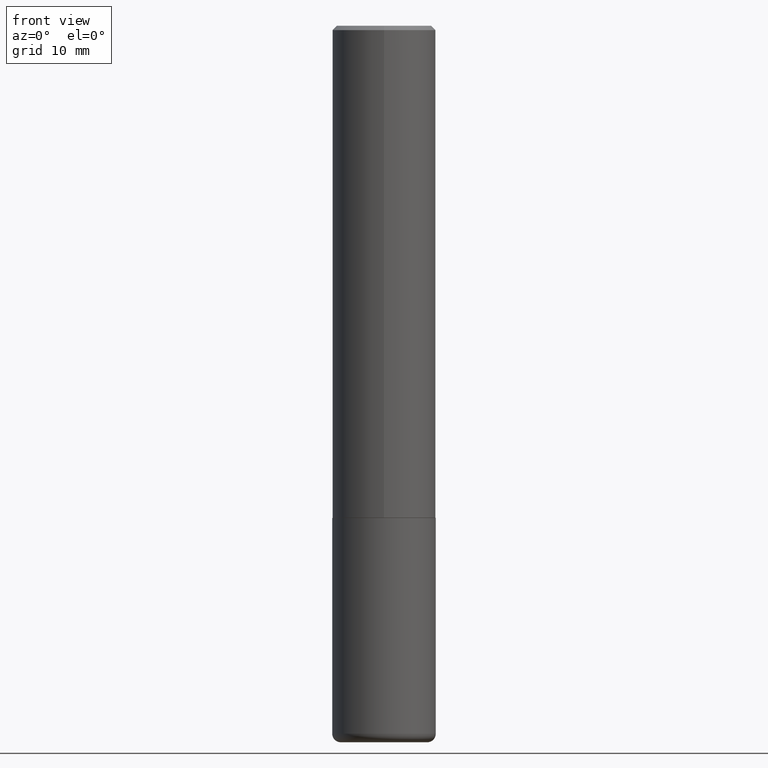
[diagram: clean part render]
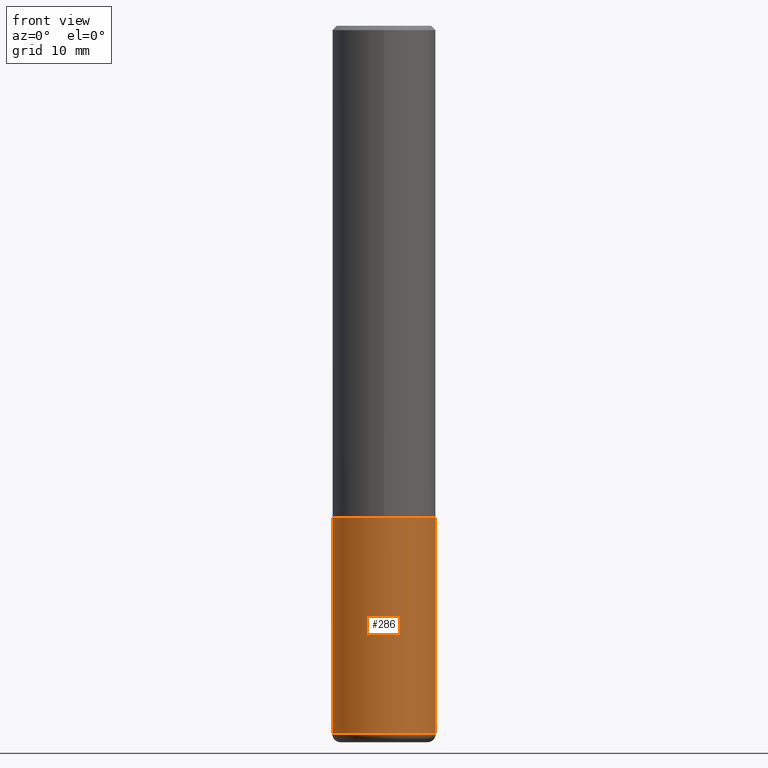
[diagram: same view with one face highlighted and labeled with its STEP entity id]
A machine part, front view. The second image highlights one B-rep face of the part: STEP entity #286.
In plain terms, the highlighted cylindrical surface (partial cylindrical patch) has radius 5.9995 mm, axis along (-0, 0, 1).
Its self-contained STEP definition (entity closure, byte-faithful):
#1 = EDGE_CURVE ( 'NONE', #215, #292, #14, .T. ) ;
#5 = DIRECTION ( 'NONE',  ( -2.445468806185136877E-29, 3.491481338843145188E-15, 1.000000000000000000 ) ) ;
#14 = LINE ( 'NONE', #302, #70 ) ;
#22 = AXIS2_PLACEMENT_3D ( 'NONE', #30, #266, #100 ) ;
#30 = CARTESIAN_POINT ( 'NONE',  ( 0.000000000000000000, 0.000000000000000000, 0.000000000000000000 ) ) ;
#44 = EDGE_CURVE ( 'NONE', #292, #48, #120, .T. ) ;
#48 = VERTEX_POINT ( 'NONE', #275 ) ;
#55 = CARTESIAN_POINT ( 'NONE',  ( -0.2362000000000001321, -9.593247264321970832E-15, -3.228299999999999947 ) ) ;
#64 = CARTESIAN_POINT ( 'NONE',  ( 0.2362000000000001321, -1.292092499065682533E-14, -3.228299999999999947 ) ) ;
#65 = VECTOR ( 'NONE', #262, 39.37007874015748143 ) ;
#70 = VECTOR ( 'NONE', #5, 39.37007874015748143 ) ;
#71 = DIRECTION ( 'NONE',  ( 1.000000000000000000, -6.982962677686265922E-15, 0.000000000000000000 ) ) ;
#74 = DIRECTION ( 'NONE',  ( 1.000000000000000000, -6.982962677686268288E-15, 0.000000000000000000 ) ) ;
#100 = DIRECTION ( 'NONE',  ( 1.000000000000000000, -6.982962677686266711E-15, 4.876176775795936353E-29 ) ) ;
#101 = EDGE_CURVE ( 'NONE', #157, #48, #161, .T. ) ;
#107 = CARTESIAN_POINT ( 'NONE',  ( 5.487876547960065873E-29, -7.835233272497903917E-15, -2.244100000000000428 ) ) ;
#120 = CIRCLE ( 'NONE', #220, 0.2362000000000000210 ) ;
#121 = ORIENTED_EDGE ( 'NONE', *, *, #101, .T. ) ;
#145 = CARTESIAN_POINT ( 'NONE',  ( -0.2362000000000000766, -7.875089297477259967E-15, -2.244100000000000428 ) ) ;
#157 = VERTEX_POINT ( 'NONE', #64 ) ;
#161 = LINE ( 'NONE', #255, #65 ) ;
#162 = EDGE_LOOP ( 'NONE', ( #226, #304, #121, #248 ) ) ;
#186 = AXIS2_PLACEMENT_3D ( 'NONE', #329, #212, #71 ) ;
#212 = DIRECTION ( 'NONE',  ( -2.445468806185136597E-29, 3.491481338843145583E-15, 1.000000000000000000 ) ) ;
#215 = VERTEX_POINT ( 'NONE', #55 ) ;
#220 = AXIS2_PLACEMENT_3D ( 'NONE', #107, #246, #74 ) ;
#226 = ORIENTED_EDGE ( 'NONE', *, *, #1, .F. ) ;
#246 = DIRECTION ( 'NONE',  ( -2.445468806185136597E-29, 3.491481338843145583E-15, 1.000000000000000000 ) ) ;
#248 = ORIENTED_EDGE ( 'NONE', *, *, #44, .F. ) ;
#255 = CARTESIAN_POINT ( 'NONE',  ( 0.2361999999999999933, -1.649375784469496131E-15, 1.151752954443000088E-29 ) ) ;
#262 = DIRECTION ( 'NONE',  ( -2.445468806185136877E-29, 3.491481338843145188E-15, 1.000000000000000000 ) ) ;
#266 = DIRECTION ( 'NONE',  ( -2.445468806185136597E-29, 3.491481338843145583E-15, 1.000000000000000000 ) ) ;
#275 = CARTESIAN_POINT ( 'NONE',  ( 0.2362000000000000210, -9.484609056967400443E-15, -2.244100000000000428 ) ) ;
#286 = ADVANCED_FACE ( 'NONE', ( #384 ), #353, .T. ) ;
#292 = VERTEX_POINT ( 'NONE', #145 ) ;
#302 = CARTESIAN_POINT ( 'NONE',  ( -0.2361999999999999933, 1.678301941865356591E-15, -1.161852468318208757E-29 ) ) ;
#304 = ORIENTED_EDGE ( 'NONE', *, *, #327, .T. ) ;
#327 = EDGE_CURVE ( 'NONE', #215, #157, #349, .T. ) ;
#329 = CARTESIAN_POINT ( 'NONE',  ( 7.894706947007477118E-29, -1.127154920618732880E-14, -3.228299999999999947 ) ) ;
#349 = CIRCLE ( 'NONE', #186, 0.2361999999999999655 ) ;
#353 = CYLINDRICAL_SURFACE ( 'NONE', #22, 0.2361999999999999933 ) ;
#384 = FACE_OUTER_BOUND ( 'NONE', #162, .T. ) ;